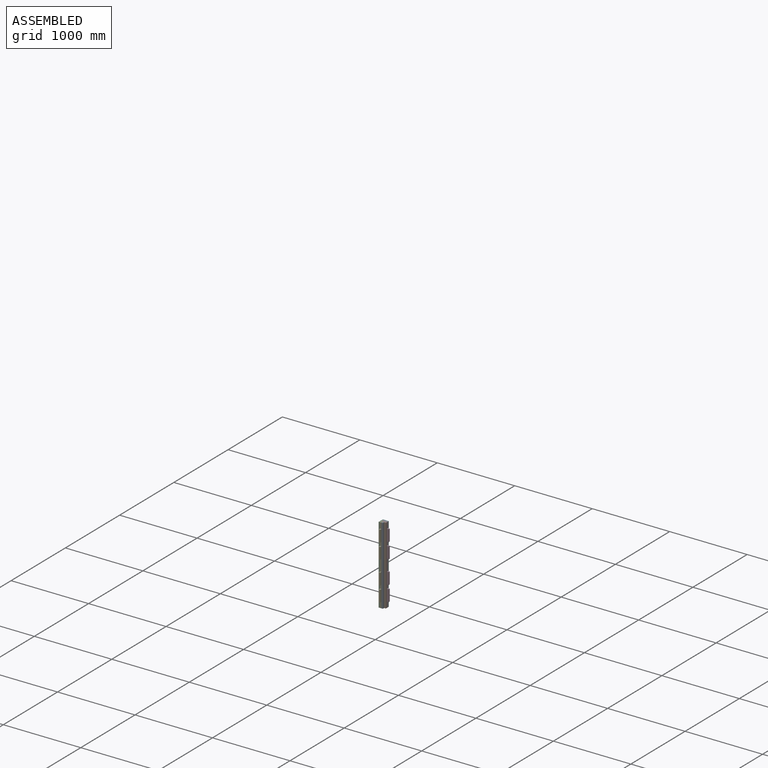
[diagram: assembled view]
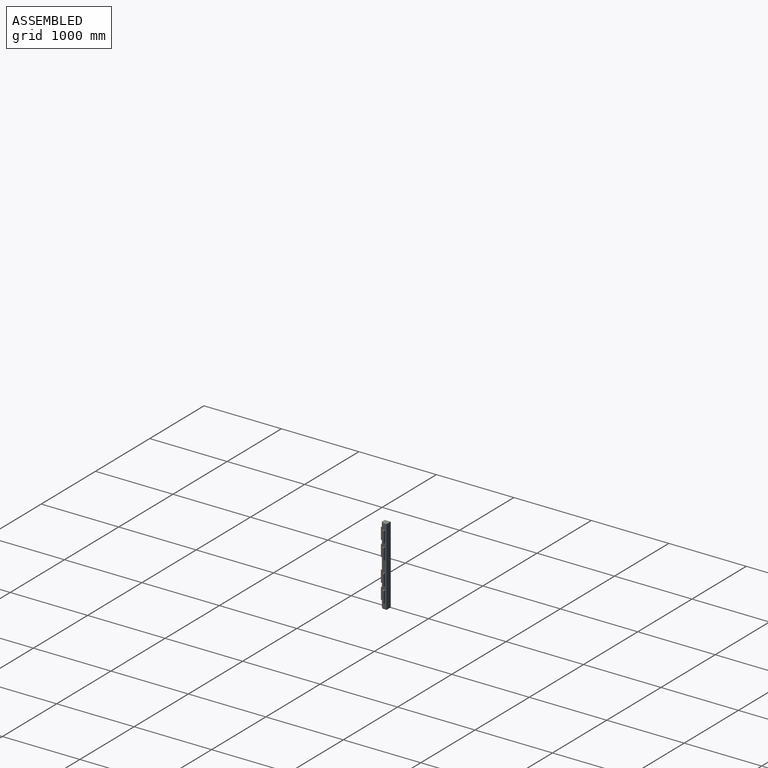
[diagram: assembled view, second angle]
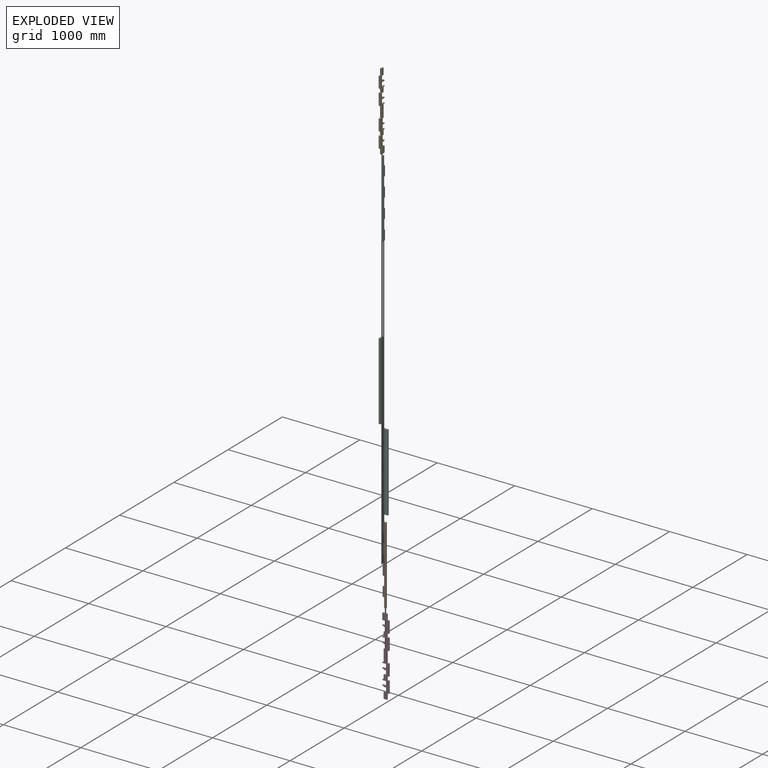
[diagram: exploded view]
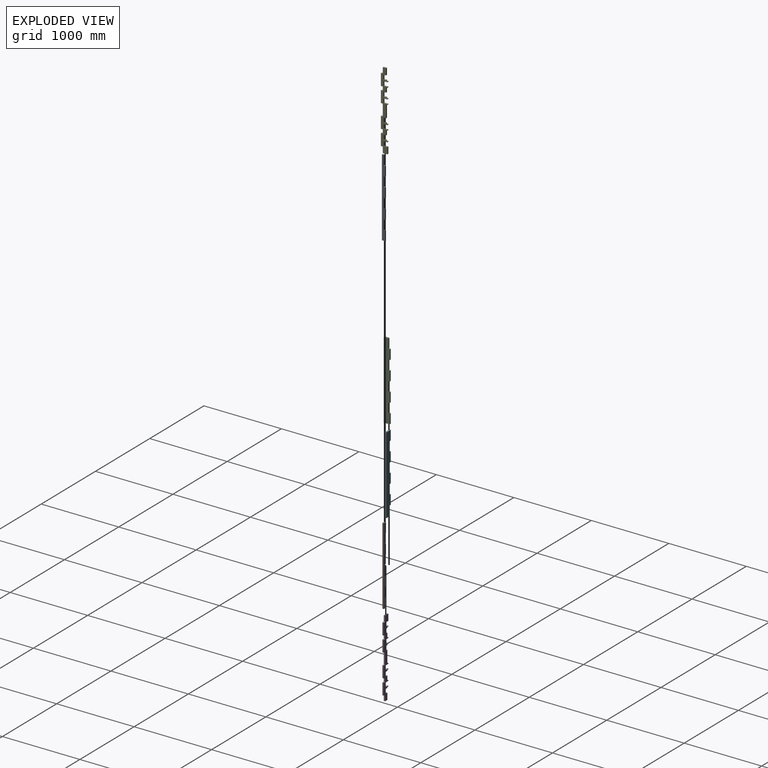
[diagram: exploded view, second angle]
ASSEMBLY  parts=6 mates=5
PART A: 20 faces, bbox 41x18x1000 mm
  f0: plane 125x18mm, normal (1,0,0), area 2250mm2, adj f1,f17,f18,f19
  f1: plane 18x18mm, normal (0,0,1), area 324mm2, adj f0,f2,f18,f19
  f2: plane 125x18mm, normal (1,0,0), area 2250mm2, adj f1,f3,f18,f19
  f3: plane 18x18mm, normal (0,0,-1), area 324mm2, adj f2,f4,f18,f19
  f4: plane 125x18mm, normal (1,0,0), area 2250mm2, adj f3,f5,f18,f19
  f5: plane 18x18mm, normal (0,0,1), area 324mm2, adj f4,f6,f18,f19
  f6: plane 125x18mm, normal (1,0,0), area 2250mm2, adj f5,f7,f18,f19
  f7: plane 23x18mm, normal (0,0,1), area 414mm2, adj f6,f8,f18,f19
  f8: plane 1000x18mm, normal (-1,0,0), area 18000mm2, adj f7,f9,f18,f19
  f9: plane 41x18mm, normal (0,0,-1), area 738mm2, adj f8,f10,f18,f19
  f10: plane 125x18mm, normal (1,0,0), area 2250mm2, adj f9,f11,f18,f19
  f11: plane 18x18mm, normal (0,0,1), area 324mm2, adj f10,f12,f18,f19
  f12: plane 125x18mm, normal (1,0,0), area 2250mm2, adj f11,f13,f18,f19
  f13: plane 18x18mm, normal (0,0,-1), area 324mm2, adj f12,f14,f18,f19
  f14: plane 125x18mm, normal (1,0,0), area 2250mm2, adj f13,f15,f18,f19
  f15: plane 18x18mm, normal (0,0,1), area 324mm2, adj f14,f16,f18,f19
  f16: plane 125x18mm, normal (1,0,0), area 2250mm2, adj f15,f17,f18,f19
  f17: plane 18x18mm, normal (0,0,-1), area 324mm2, adj f0,f16,f18,f19
  f18: plane 1000x41mm, normal (0,-1,0), area 32000mm2, adj f0,f1,f2,f3,f4,f5,f6,f7
  f19: plane 1000x41mm, normal (0,1,0), area 32000mm2, adj f0,f1,f2,f3,f4,f5,f6,f7
PART B: same geometry as A
PART C: 20 faces, bbox 77x18x1000 mm
  f0: plane 125x18mm, normal (1,0,0), area 2250mm2, adj f1,f17,f18,f19
  f1: plane 18x18mm, normal (0,0,1), area 324mm2, adj f0,f2,f18,f19
  f2: plane 125x18mm, normal (1,0,0), area 2250mm2, adj f1,f3,f18,f19
  f3: plane 18x18mm, normal (0,0,-1), area 324mm2, adj f2,f4,f18,f19
  f4: plane 125x18mm, normal (1,0,0), area 2250mm2, adj f3,f5,f18,f19
  f5: plane 18x18mm, normal (0,0,1), area 324mm2, adj f4,f6,f18,f19
  f6: plane 125x18mm, normal (1,0,0), area 2250mm2, adj f5,f7,f18,f19
  f7: plane 59x18mm, normal (0,0,1), area 1062mm2, adj f6,f8,f18,f19
  f8: plane 1000x18mm, normal (-1,0,0), area 18000mm2, adj f7,f9,f18,f19
  f9: plane 77x18mm, normal (0,0,-1), area 1386mm2, adj f8,f10,f18,f19
  f10: plane 125x18mm, normal (1,0,0), area 2250mm2, adj f9,f11,f18,f19
  f11: plane 18x18mm, normal (0,0,1), area 324mm2, adj f10,f12,f18,f19
  f12: plane 125x18mm, normal (1,0,0), area 2250mm2, adj f11,f13,f18,f19
  f13: plane 18x18mm, normal (0,0,-1), area 324mm2, adj f12,f14,f18,f19
  f14: plane 125x18mm, normal (1,0,0), area 2250mm2, adj f13,f15,f18,f19
  f15: plane 18x18mm, normal (0,0,1), area 324mm2, adj f14,f16,f18,f19
  f16: plane 125x18mm, normal (1,0,0), area 2250mm2, adj f15,f17,f18,f19
  f17: plane 18x18mm, normal (0,0,-1), area 324mm2, adj f0,f16,f18,f19
  f18: plane 1000x77mm, normal (0,-1,0), area 68000mm2, adj f0,f1,f2,f3,f4,f5,f6,f7
  f19: plane 1000x77mm, normal (0,1,0), area 68000mm2, adj f0,f1,f2,f3,f4,f5,f6,f7
PART D: 68 faces, bbox 84x18x1000 mm
  f0: plane 31x18mm, normal (0,0,1), area 558mm2, adj f1,f65,f66,f67
  f1: plane 160x18mm, normal (-1,0,0), area 2880mm2, adj f0,f2,f66,f67
  f2: plane 18x18mm, normal (0,0,1), area 324mm2, adj f1,f3,f66,f67
  f3: plane 18x10mm, normal (-1,0,0), area 180mm2, adj f2,f4,f66,f67
  f4: plane 49x18mm, normal (0,0,-1), area 882mm2, adj f3,f5,f66,f67
  f5: plane 55x18mm, normal (-1,0,0), area 990mm2, adj f4,f6,f66,f67
  f6: plane 49x18mm, normal (0,0,1), area 882mm2, adj f5,f7,f66,f67
  f7: plane 18x10mm, normal (-1,0,0), area 180mm2, adj f6,f8,f66,f67
  f8: plane 18x18mm, normal (0,0,-1), area 324mm2, adj f7,f9,f66,f67
  f9: plane 18x10mm, normal (-1,0,0), area 180mm2, adj f8,f10,f66,f67
  f10: plane 31x18mm, normal (0,0,-1), area 558mm2, adj f9,f11,f66,f67
  f11: plane 55x18mm, normal (-1,0,0), area 990mm2, adj f10,f12,f66,f67
  f12: plane 31x18mm, normal (0,0,1), area 558mm2, adj f11,f13,f66,f67
  f13: plane 60x18mm, normal (-1,0,0), area 1080mm2, adj f12,f14,f66,f67
  f14: plane 18x18mm, normal (0,0,1), area 324mm2, adj f13,f15,f66,f67
  f15: plane 18x10mm, normal (-1,0,0), area 180mm2, adj f14,f16,f66,f67
  f16: plane 49x18mm, normal (0,0,-1), area 882mm2, adj f15,f17,f66,f67
  f17: plane 55x18mm, normal (-1,0,0), area 990mm2, adj f16,f18,f66,f67
  f18: plane 49x18mm, normal (0,0,1), area 882mm2, adj f17,f19,f66,f67
  f19: plane 18x10mm, normal (-1,0,0), area 180mm2, adj f18,f20,f66,f67
  f20: plane 18x18mm, normal (0,0,-1), area 324mm2, adj f19,f21,f66,f67
  f21: plane 18x10mm, normal (-1,0,0), area 180mm2, adj f20,f22,f66,f67
  f22: plane 31x18mm, normal (0,0,-1), area 558mm2, adj f21,f23,f66,f67
  f23: plane 55x18mm, normal (-1,0,0), area 990mm2, adj f22,f24,f66,f67
  f24: plane 31x18mm, normal (0,0,1), area 558mm2, adj f23,f25,f66,f67
  f25: plane 85x18mm, normal (-1,0,0), area 1530mm2, adj f24,f26,f66,f67
  f26: plane 41x18mm, normal (0,0,-1), area 738mm2, adj f25,f27,f66,f67
  f27: plane 75x18mm, normal (1,0,0), area 1350mm2, adj f26,f28,f66,f67
  f28: plane 25x18mm, normal (0,0,-1), area 450mm2, adj f27,f29,f66,f67
  f29: plane 150x18mm, normal (1,0,0), area 2700mm2, adj f28,f30,f66,f67
  f30: plane 25x18mm, normal (0,0,1), area 450mm2, adj f29,f31,f66,f67
  f31: plane 50x18mm, normal (1,0,0), area 900mm2, adj f30,f32,f66,f67
  f32: plane 25x18mm, normal (0,0,-1), area 450mm2, adj f31,f33,f66,f67
  f33: plane 150x18mm, normal (1,0,0), area 2700mm2, adj f32,f34,f66,f67
  f34: plane 25x18mm, normal (0,0,1), area 450mm2, adj f33,f35,f66,f67
  f35: plane 150x18mm, normal (1,0,0), area 2700mm2, adj f34,f36,f66,f67
  f36: plane 25x18mm, normal (0,0,-1), area 450mm2, adj f35,f37,f66,f67
  f37: plane 150x18mm, normal (1,0,0), area 2700mm2, adj f36,f38,f66,f67
  f38: plane 25x18mm, normal (0,0,1), area 450mm2, adj f37,f39,f66,f67
  f39: plane 50x18mm, normal (1,0,0), area 900mm2, adj f38,f40,f66,f67
  f40: plane 25x18mm, normal (0,0,-1), area 450mm2, adj f39,f41,f66,f67
  f41: plane 150x18mm, normal (1,0,0), area 2700mm2, adj f40,f42,f66,f67
  f42: plane 25x18mm, normal (0,0,1), area 450mm2, adj f41,f43,f66,f67
  f43: plane 75x18mm, normal (1,0,0), area 1350mm2, adj f42,f44,f66,f67
  f44: plane 59x18mm, normal (0,0,1), area 1062mm2, adj f43,f45,f66,f67
  f45: plane 85x18mm, normal (-1,0,0), area 1530mm2, adj f44,f46,f66,f67
  f46: plane 49x18mm, normal (0,0,-1), area 882mm2, adj f45,f47,f66,f67
  f47: plane 55x18mm, normal (-1,0,0), area 990mm2, adj f46,f48,f66,f67
  f48: plane 49x18mm, normal (0,0,1), area 882mm2, adj f47,f49,f66,f67
  f49: plane 18x10mm, normal (-1,0,0), area 180mm2, adj f48,f50,f66,f67
  f50: plane 18x18mm, normal (0,0,-1), area 324mm2, adj f49,f51,f66,f67
  f51: plane 18x10mm, normal (-1,0,0), area 180mm2, adj f50,f52,f66,f67
  f52: plane 31x18mm, normal (0,0,-1), area 558mm2, adj f51,f53,f66,f67
  f53: plane 55x18mm, normal (-1,0,0), area 990mm2, adj f52,f54,f66,f67
  f54: plane 31x18mm, normal (0,0,1), area 558mm2, adj f53,f55,f66,f67
  f55: plane 60x18mm, normal (-1,0,0), area 1080mm2, adj f54,f56,f66,f67
  f56: plane 18x18mm, normal (0,0,1), area 324mm2, adj f55,f57,f66,f67
  f57: plane 18x10mm, normal (-1,0,0), area 180mm2, adj f56,f58,f66,f67
  f58: plane 49x18mm, normal (0,0,-1), area 882mm2, adj f57,f59,f66,f67
  f59: plane 55x18mm, normal (-1,0,0), area 990mm2, adj f58,f60,f66,f67
  f60: plane 49x18mm, normal (0,0,1), area 882mm2, adj f59,f61,f66,f67
  f61: plane 18x10mm, normal (-1,0,0), area 180mm2, adj f60,f62,f66,f67
  f62: plane 18x18mm, normal (0,0,-1), area 324mm2, adj f61,f63,f66,f67
  f63: plane 18x10mm, normal (-1,0,0), area 180mm2, adj f62,f64,f66,f67
  f64: plane 31x18mm, normal (0,0,-1), area 558mm2, adj f63,f65,f66,f67
  f65: plane 55x18mm, normal (-1,0,0), area 990mm2, adj f0,f64,f66,f67
  f66: plane 1000x84mm, normal (0,-1,0), area 45150mm2, adj f0,f1,f2,f3,f4,f5,f6,f7
  f67: plane 1000x84mm, normal (0,1,0), area 45150mm2, adj f0,f1,f2,f3,f4,f5,f6,f7
PART E: same geometry as D
PART F: same geometry as C
PLACE A rot(axis=(0,0,1),90deg) t=(-58,-230.36,-84.44)mm
PLACE B rot(axis=(0,1,0),180deg) t=(-17,-189.36,915.56)mm
PLACE C rot(axis=(0,0,1),90deg) t=(-94,-230.36,-84.44)mm
PLACE D t=(-58,-171.36,-84.44)mm
PLACE E rot(axis=(0.71,-0.71,0),180deg) t=(-76,-189.36,915.56)mm
PLACE F rot(axis=(0,1,0),180deg) t=(-17,-153.36,915.56)mm
MATE fastened A.f7 <-> B.f9  axis (0,0,1) through (-58,-207.36,915.56)mm
MATE fastened D.f44 <-> C.f7  axis (0,0,1) through (-76,-171.36,915.56)mm
MATE fastened C.f7 <-> F.f9  axis (0,0,1) through (-94,-171.36,915.56)mm
MATE fastened E.f26 <-> D.f44  axis (0,0,1) through (-76,-189.36,915.56)mm
MATE fastened B.f9 <-> E.f26  axis (0,0,1) through (-58,-189.36,915.56)mm
